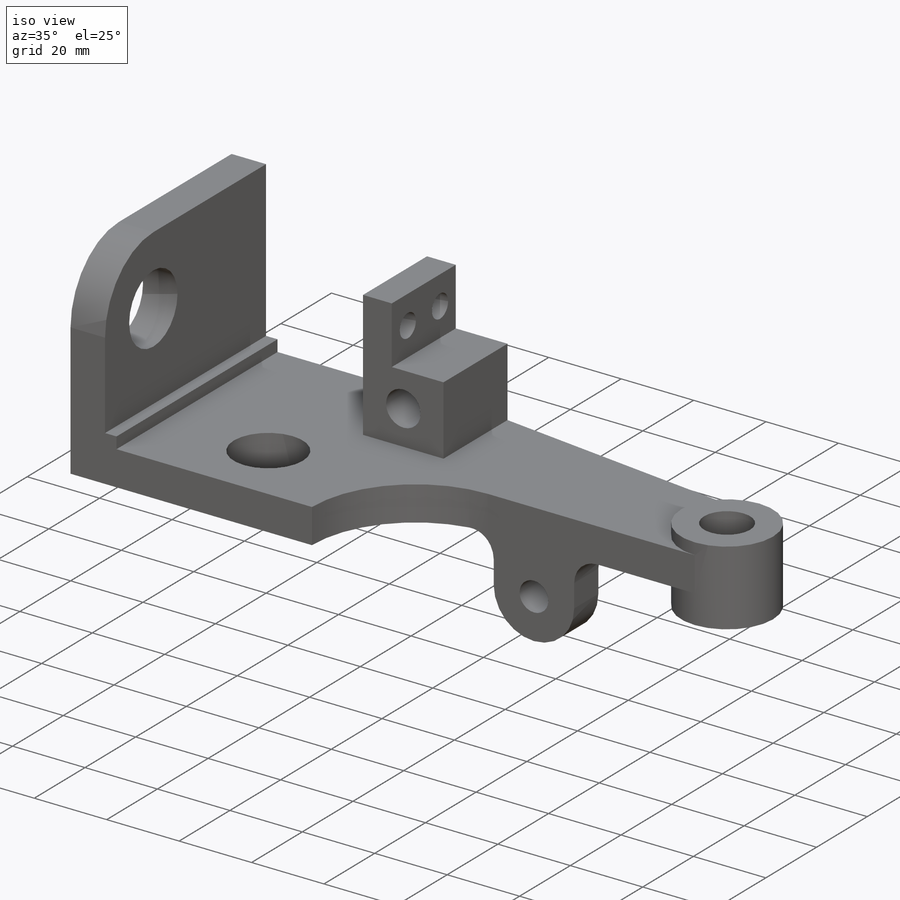
[diagram: iso view]
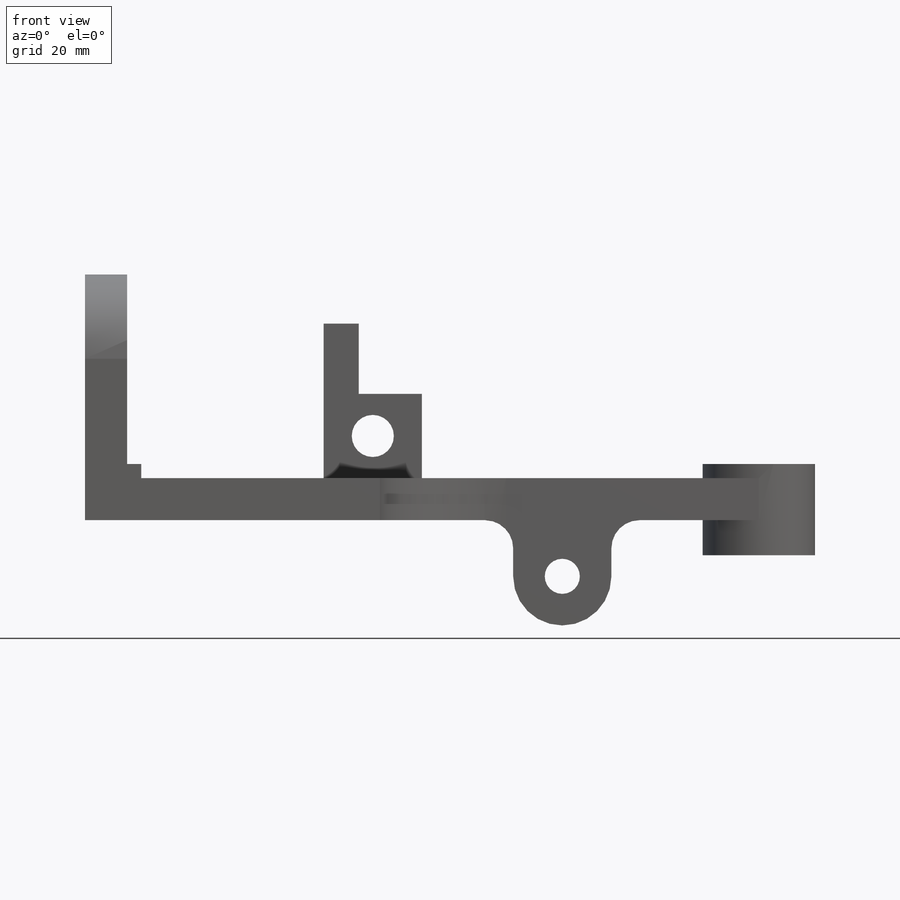
[diagram: front view]
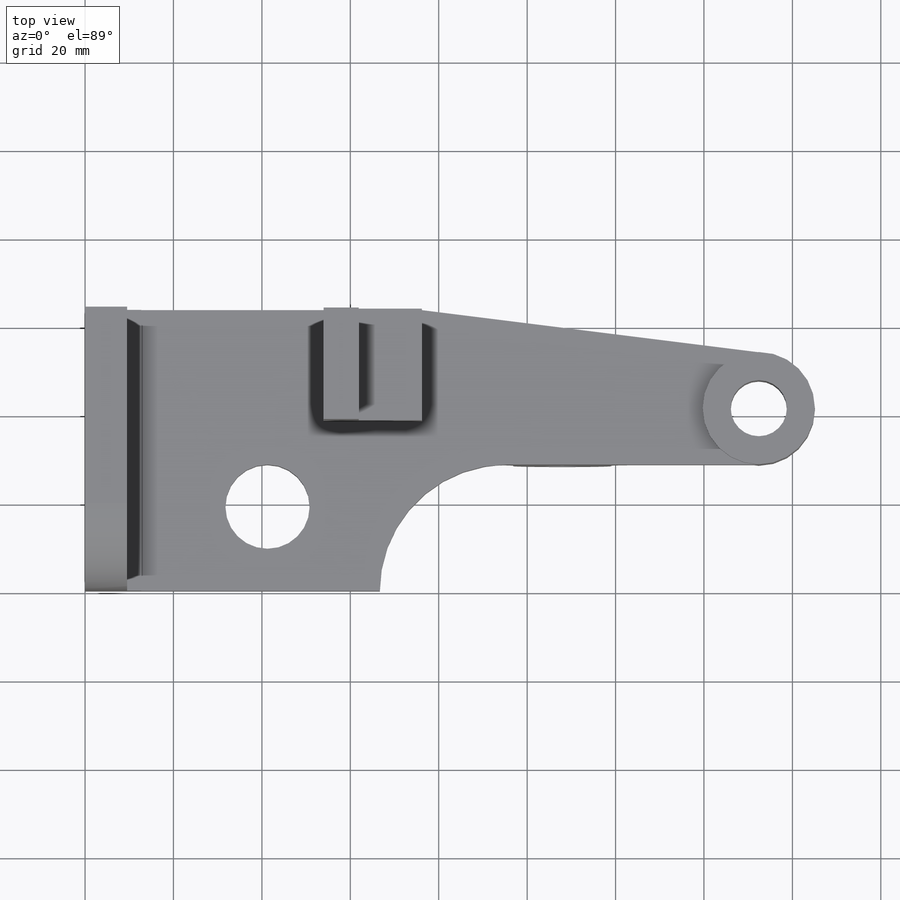
[diagram: top view]
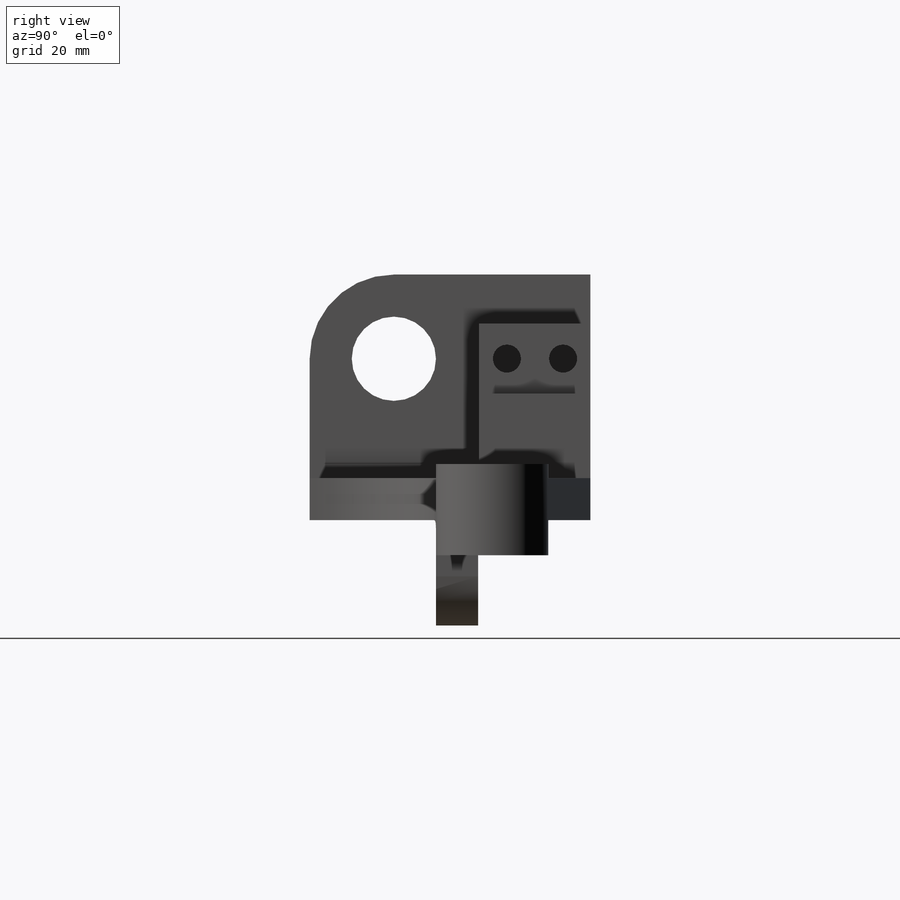
[diagram: right view]
SOLIDWORKS PART (.sldprt)
format: sldprt  version: not decoded by parser v0  size: 364,032 bytes
history: native  units: mm
features: sketch x13, extrude x8, cut_extrude x5, plane x3, material x1, fillet x1 (+8 scaffold rows collapsed)
feature tree (39):
  scaffold x8  (default folders/planes/origin — collapsed)
  material  "Material <sin especificar>"
  plane  "Alzado"
  plane  "Planta"
  plane  "Vista lateral"
  sketch  "Croquis1"  dims[c1.D8=25.4mm c1.D11=19.05mm c1.D1=66.675mm c1.D2=63.5mm c1.D3=9.525mm c1.D4=142.875mm c1.D5=52.3875mm c1.D6=14.2875mm c1.D7=22.225mm c1.D9=28.575mm c1.D10=19.05mm c2.D11=41.275mm c2.D12=19.05mm c2.D10=41.275mm]
  extrude  "Saliente-Extruir1"  Depth=9.525mm
  sketch  "Croquis2"  dims[D1=44.45mm]
  extrude  "Saliente-Extruir3"  Depth=46.0375mm
  sketch  "Croquis3"  dims[D3=19.05mm D4=19.05mm D1=19.05mm D2=19.05mm]
  cut_extrude  "Cortar-Extruir1"  Depth=46.0375mm
  sketch  "Croquis4"
  extrude  "Saliente-Extruir4"  Depth=3.175mm
  sketch  "Croquis5"  dims[D1=22.225mm]
  extrude  "Saliente-Extruir5"  Depth=19.05mm
  sketch  "Croquis6"  dims[D1=7.9375mm]
  extrude  "Saliente-Extruir6"  Depth=15.875mm
  sketch  "Croquis7"  dims[D4=6.35mm D1=7.9375mm D2=6.35mm D3=12.7mm]
  cut_extrude  "Cortar-Extruir2"  Depth=15.875mm
  sketch  "Croquis8"  dims[D2=9.525mm D1=9.525mm]
  cut_extrude  "Cortar-Extruir4"  [1 undecoded]
  sketch  "Croquis9"
  extrude  "Saliente-Extruir7"  Depth=7.9375mm
  sketch  "Croquis10"  dims[D1=12.7mm]
  cut_extrude  "Cortar-Extruir5"  [1 undecoded]
  sketch  "Croquis14"  dims[D1=22.225mm D2=9.525mm D3=9.525mm]
  extrude  "Saliente-Extruir8"  Depth=23.8125mm
  sketch  "Croquis15"  dims[D3=7.9375mm D4=~10.134433mm D1=11.1125mm D2=22.225mm]
  cut_extrude  "Cortar-Extruir7"  [1 undecoded]
  fillet  "Redondeo6"  Radius=6.35mm
  sketch  "Croquis16"  dims[D1=3.175mm D2=3.175mm]
  extrude  "Saliente-Extruir9"  Depth=63.5mm
decode coverage: 22 of 27 modeling features carry decoded parameters
note: ~ marks probable driven/reference dimensions
note: 3 parameter values undecoded
summary: no parameter record found for 3 features
note: suppression state not decoded; provenance and decode notes live in map.json
